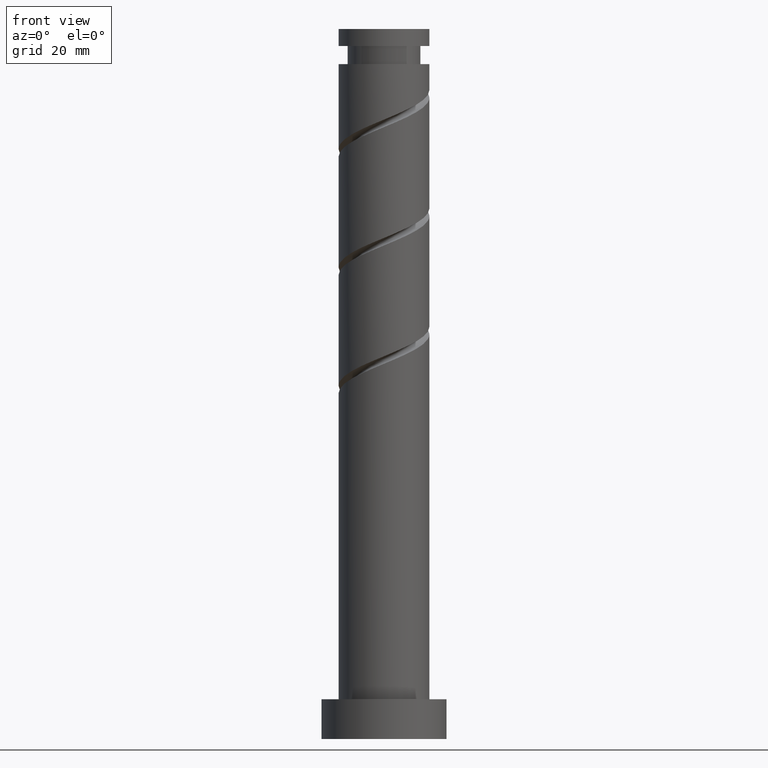
[diagram: clean part render]
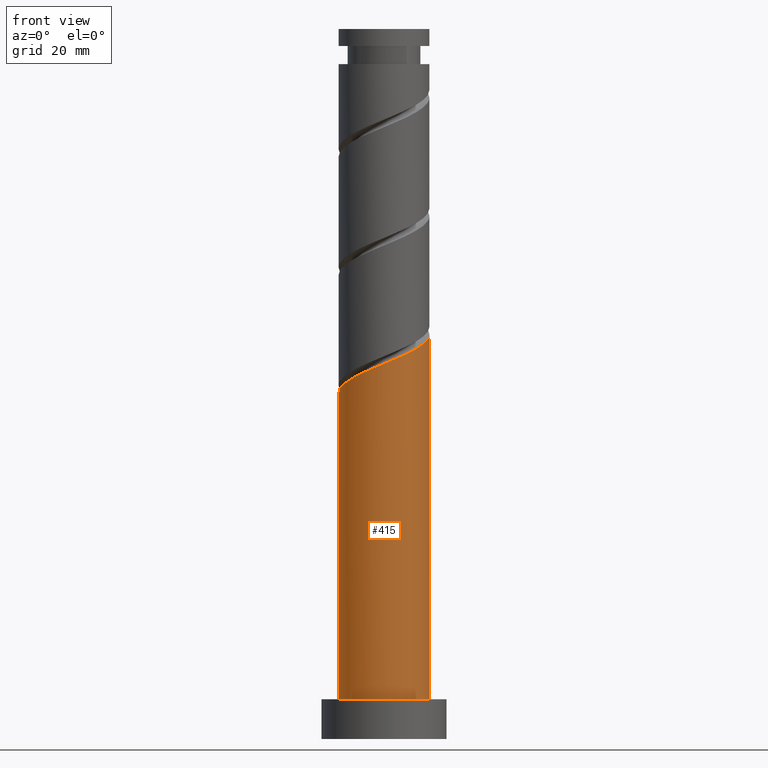
[diagram: same view with one face highlighted and labeled with its STEP entity id]
A machine part, front view. The second image highlights one B-rep face of the part: STEP entity #415.
In plain terms, the highlighted cylindrical surface (partial cylindrical patch) has radius 8 mm, axis along (-0, -0, -1).
Its self-contained STEP definition (entity closure, byte-faithful):
#17 = LINE ( 'NONE', #123, #714 ) ;
#23 = AXIS2_PLACEMENT_3D ( 'NONE', #1223, #859, #1572 ) ;
#73 = CARTESIAN_POINT ( 'NONE',  ( 7.278435542695688376, -3.320297584678870706, 69.85870673356131988 ) ) ;
#82 = CARTESIAN_POINT ( 'NONE',  ( 2.833713911514957662, -7.587855154630291921, 67.25454006689466269 ) ) ;
#123 = CARTESIAN_POINT ( 'NONE',  ( -8.000000000000000000, 0.000000000000000000, 125.0000000000000000 ) ) ;
#155 = VERTEX_POINT ( 'NONE', #1356 ) ;
#194 = CARTESIAN_POINT ( 'NONE',  ( -0.9086303787922878072, -7.948231931362848002, 65.69204006689463426 ) ) ;
#203 = CARTESIAN_POINT ( 'NONE',  ( -6.340813333660080708, -5.039798274498833663, 63.08787340022799128 ) ) ;
#219 = CARTESIAN_POINT ( 'NONE',  ( -3.320297584678870706, -7.278435542695688376, 64.65037340022797707 ) ) ;
#229 = ORIENTED_EDGE ( 'NONE', *, *, #1286, .F. ) ;
#273 = EDGE_CURVE ( 'NONE', #155, #295, #544, .T. ) ;
#295 = VERTEX_POINT ( 'NONE', #794 ) ;
#300 = VECTOR ( 'NONE', #307, 1000.000000000000000 ) ;
#302 = ORIENTED_EDGE ( 'NONE', *, *, #1184, .T. ) ;
#307 = DIRECTION ( 'NONE',  ( -0.000000000000000000, -0.000000000000000000, -1.000000000000000000 ) ) ;
#346 = CARTESIAN_POINT ( 'NONE',  ( -8.000000000000014211, -0.8040302522073767832, 61.19487553416555414 ) ) ;
#367 = VERTEX_POINT ( 'NONE', #597 ) ;
#415 = ADVANCED_FACE ( 'NONE', ( #1078 ), #985, .T. ) ;
#432 = EDGE_CURVE ( 'NONE', #367, #1177, #17, .T. ) ;
#444 = CARTESIAN_POINT ( 'NONE',  ( -6.964334244145185870, -3.936756093006895885, 62.56704006689464848 ) ) ;
#461 = CARTESIAN_POINT ( 'NONE',  ( 3.936756093006894996, -6.964334244145185870, 67.77537340022799128 ) ) ;
#544 = LINE ( 'NONE', #924, #300 ) ;
#572 = EDGE_LOOP ( 'NONE', ( #1539, #229, #727, #302 ) ) ;
#574 = CARTESIAN_POINT ( 'NONE',  ( -4.473088524546940725, -6.752552068035417854, 64.12954006689464848 ) ) ;
#581 = CARTESIAN_POINT ( 'NONE',  ( -2.167506644810801131, -7.804319017355960675, 65.17120673356131988 ) ) ;
#590 = CARTESIAN_POINT ( 'NONE',  ( -7.840000000000014069, -1.591979899370591811, 61.52537340022796997 ) ) ;
#597 = CARTESIAN_POINT ( 'NONE',  ( -8.000000000000015987, -5.997241113282295808E-15, 60.86057095875771950 ) ) ;
#653 = CARTESIAN_POINT ( 'NONE',  ( 0.000000000000000000, 0.000000000000000000, 7.000000000000000000 ) ) ;
#661 = CARTESIAN_POINT ( 'NONE',  ( -8.000000000000000000, 0.000000000000000000, 7.000000000000000000 ) ) ;
#682 = CARTESIAN_POINT ( 'NONE',  ( 8.000000000000014211, 5.037682535157128258E-15, 71.27723762542440511 ) ) ;
#714 = VECTOR ( 'NONE', #1343, 1000.000000000000000 ) ;
#727 = ORIENTED_EDGE ( 'NONE', *, *, #432, .T. ) ;
#794 = CARTESIAN_POINT ( 'NONE',  ( 8.000000000000000000, 9.797174393178825657E-16, 7.000000000000000000 ) ) ;
#804 = CARTESIAN_POINT ( 'NONE',  ( 8.000000000000014211, -0.4557898995714629864, 71.08772653621711868 ) ) ;
#811 = CARTESIAN_POINT ( 'NONE',  ( -8.000000000000015987, -5.997241113282295808E-15, 60.86057095875771239 ) ) ;
#829 = CARTESIAN_POINT ( 'NONE',  ( -7.587855154630291921, -2.833713911514957662, 62.04620673356131988 ) ) ;
#859 = DIRECTION ( 'NONE',  ( -0.000000000000000000, -0.000000000000000000, -1.000000000000000000 ) ) ;
#924 = CARTESIAN_POINT ( 'NONE',  ( 8.000000000000000000, 9.797174393178825657E-16, 125.0000000000000000 ) ) ;
#953 = AXIS2_PLACEMENT_3D ( 'NONE', #653, #1131, #1503 ) ;
#956 = CARTESIAN_POINT ( 'NONE',  ( 0.3502458872262247391, -8.092144845369736217, 66.21287340022797707 ) ) ;
#965 = CARTESIAN_POINT ( 'NONE',  ( 6.752552068035418742, -4.473088524546940725, 69.33787340022800549 ) ) ;
#985 = CYLINDRICAL_SURFACE ( 'NONE', #23, 8.000000000000000000 ) ;
#1078 = FACE_OUTER_BOUND ( 'NONE', #572, .T. ) ;
#1131 = DIRECTION ( 'NONE',  ( 0.000000000000000000, 0.000000000000000000, 1.000000000000000000 ) ) ;
#1177 = VERTEX_POINT ( 'NONE', #661 ) ;
#1179 = CARTESIAN_POINT ( 'NONE',  ( 5.896175171267123538, -5.406950929103508940, 68.81704006689463426 ) ) ;
#1184 = EDGE_CURVE ( 'NONE', #1177, #295, #1436, .T. ) ;
#1223 = CARTESIAN_POINT ( 'NONE',  ( 0.000000000000000000, 0.000000000000000000, 125.0000000000000000 ) ) ;
#1285 = CARTESIAN_POINT ( 'NONE',  ( 7.948231931362848002, -0.9086303787922882513, 70.90037340022799128 ) ) ;
#1286 = EDGE_CURVE ( 'NONE', #367, #155, #1504, .T. ) ;
#1293 = CARTESIAN_POINT ( 'NONE',  ( 5.039798274498832775, -6.340813333660080708, 68.29620673356131988 ) ) ;
#1313 = CARTESIAN_POINT ( 'NONE',  ( 7.804319017355962451, -2.167506644810801575, 70.37954006689464848 ) ) ;
#1343 = DIRECTION ( 'NONE',  ( -0.000000000000000000, -0.000000000000000000, -1.000000000000000000 ) ) ;
#1356 = CARTESIAN_POINT ( 'NONE',  ( 8.000000000000014211, 5.037682535157128258E-15, 71.27723762542440511 ) ) ;
#1436 = CIRCLE ( 'NONE', #953, 8.000000000000000000 ) ;
#1450 = CARTESIAN_POINT ( 'NONE',  ( -5.406950929103508940, -5.896175171267123538, 63.60870673356130567 ) ) ;
#1503 = DIRECTION ( 'NONE',  ( 1.000000000000000000, 0.000000000000000000, 0.000000000000000000 ) ) ;
#1504 =( BOUNDED_CURVE ( )  B_SPLINE_CURVE ( 2, ( #811, #346, #590, #829, #444, #203, #1450, #574, #219, #581, #194, #956, #1541, #82, #461, #1293, #1179, #965, #73, #1313, #1285, #804, #682 ),
 .UNSPECIFIED., .F., .T. ) 
 B_SPLINE_CURVE_WITH_KNOTS ( ( 3, 2, 2, 2, 2, 2, 2, 2, 2, 2, 2, 3 ),
 ( 0.05453220231385529082, 0.06250000000000000000, 0.07499999999999995559, 0.08750000000000002220, 0.09999999999999997780, 0.1125000000000000444, 0.1250000000000000000, 0.1374999999999999556, 0.1500000000000000222, 0.1624999999999999778, 0.1750000000000000444, 0.1795322023138552492 ),
 .UNSPECIFIED. ) 
 CURVE ( )  GEOMETRIC_REPRESENTATION_ITEM ( )  RATIONAL_B_SPLINE_CURVE ( ( 0.9039174447099390663, 0.9019565955404684754, 0.9090909090909168322, 0.8978984914501328962, 0.9090909090909168322, 0.8978984914501328962, 0.9090909090909168322, 0.8978984914501328962, 0.9090909090909168322, 0.8978984914501328962, 0.9090909090909168322, 0.8978984914501328962, 0.9090909090909168322, 0.8978984914501328962, 0.9090909090909168322, 0.8978984914501328962, 0.9090909090909168322, 0.8978984914501328962, 0.9090909090909168322, 0.8978984914501328962, 0.9090909090909168322, 0.9050328050005811420, 0.9039174447099389553 ) ) 
 REPRESENTATION_ITEM ( '' )  );
#1539 = ORIENTED_EDGE ( 'NONE', *, *, #273, .F. ) ;
#1541 = CARTESIAN_POINT ( 'NONE',  ( 1.591979899370591145, -7.840000000000014069, 66.73370673356130567 ) ) ;
#1572 = DIRECTION ( 'NONE',  ( -1.000000000000000000, 0.000000000000000000, 0.000000000000000000 ) ) ;